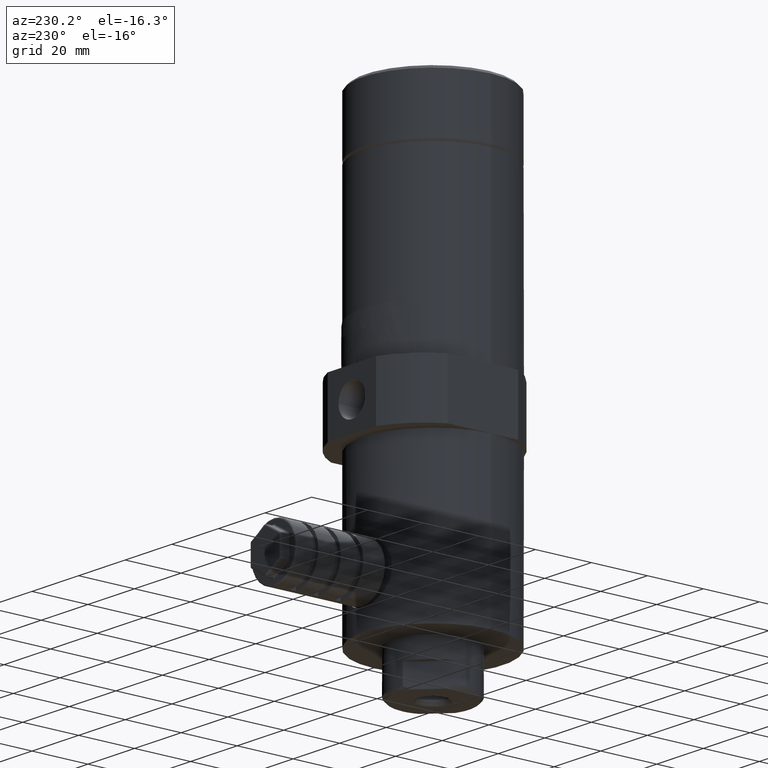
[diagram: clean part render]
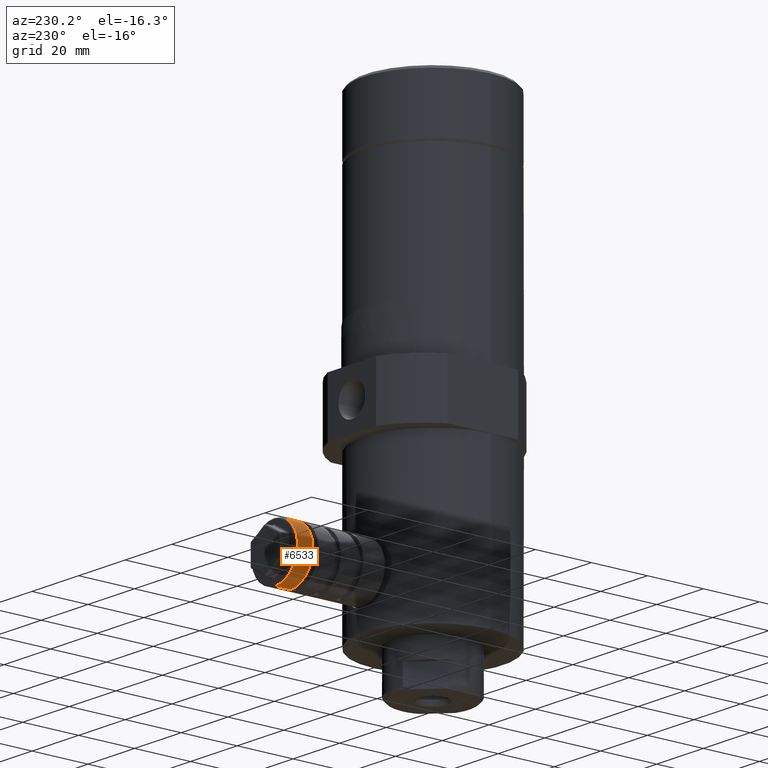
[diagram: same view with one face highlighted and labeled with its STEP entity id]
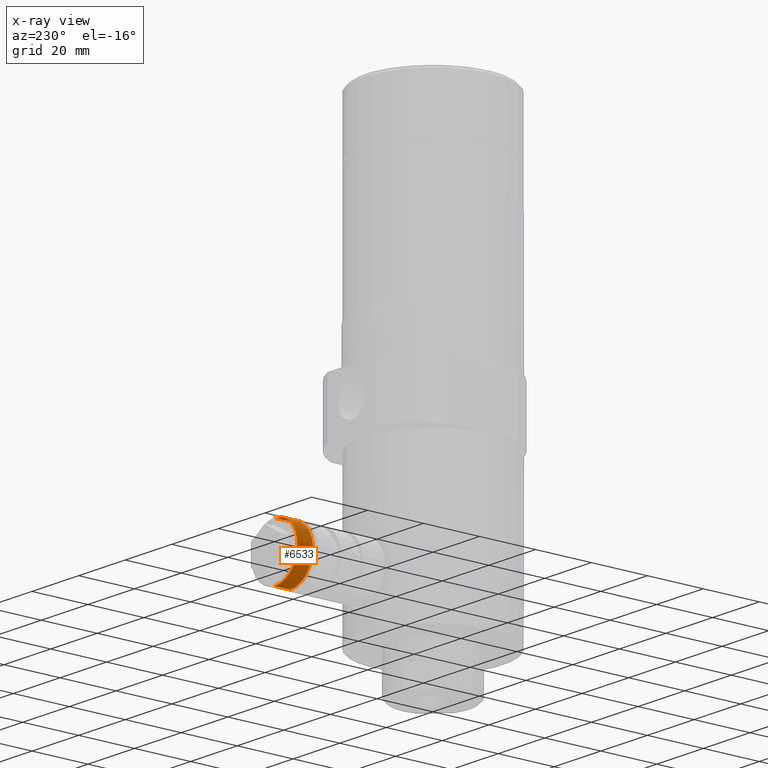
[diagram: x-ray of the same camera — body ghosted, the highlighted face saturated]
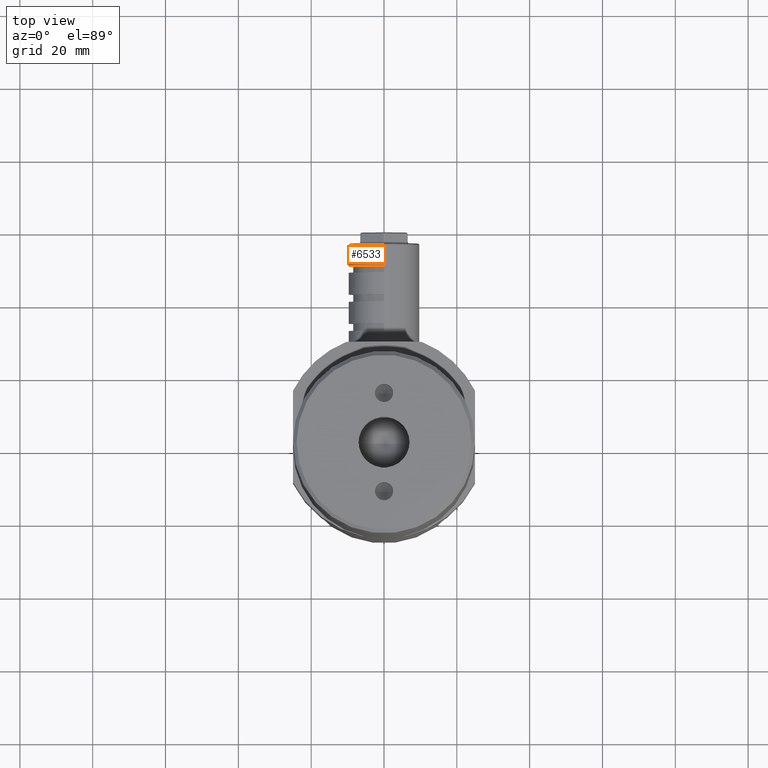
[diagram: same view with one face highlighted and labeled with its STEP entity id]
A machine part, auxiliary view. The second image highlights one B-rep face of the part: STEP entity #6533.
The next image is the same camera in x-ray: the body ghosted, the highlighted face saturated — about 0% of this face is hidden behind the body in this view.
A second angle (top view) of the same face is appended — the face is thin or edge-on in the first view.
In plain terms, the highlighted cylindrical surface (edge-blend (fillet) strip) has radius 9.75 mm, axis along (0, -1, 0).
Its self-contained STEP definition (entity closure, byte-faithful):
#109 = LINE ( 'NONE', #5415, #5097 ) ;
#122 = CARTESIAN_POINT ( 'NONE',  ( -2.991311925369654400E-015, 57.00000000000000000, 22.62468314162909900 ) ) ;
#393 = CYLINDRICAL_SURFACE ( 'NONE', #3867, 9.749999999999998200 ) ;
#395 = DIRECTION ( 'NONE',  ( 7.161140906330799000E-017, -1.000000000000000000, 1.038109137218916000E-017 ) ) ;
#784 = ORIENTED_EDGE ( 'NONE', *, *, #5626, .T. ) ;
#871 = AXIS2_PLACEMENT_3D ( 'NONE', #5164, #3113, #2061 ) ;
#1185 = VERTEX_POINT ( 'NONE', #2068 ) ;
#1381 = EDGE_CURVE ( 'NONE', #4773, #3249, #109, .T. ) ;
#1790 = CARTESIAN_POINT ( 'NONE',  ( -2.662859111868650000E-015, 51.00000000000000000, 12.87468314162910100 ) ) ;
#1949 = EDGE_CURVE ( 'NONE', #1185, #2831, #4367, .T. ) ;
#2061 = DIRECTION ( 'NONE',  ( -1.038109137218914700E-017, 0.0000000000000000000, -1.000000000000000000 ) ) ;
#2068 = CARTESIAN_POINT ( 'NONE',  ( -1.744313739477882000E-015, 56.50000000000000000, 32.37468314162909900 ) ) ;
#2397 = DIRECTION ( 'NONE',  ( 7.161140906330799000E-017, -1.000000000000000000, 1.038109137218916000E-017 ) ) ;
#2831 = VERTEX_POINT ( 'NONE', #4250 ) ;
#2881 = CIRCLE ( 'NONE', #871, 9.750000000000000000 ) ;
#2968 = CARTESIAN_POINT ( 'NONE',  ( -2.561643470989804800E-015, 51.00000000000000000, 22.62468314162909900 ) ) ;
#3056 = CIRCLE ( 'NONE', #6588, 9.750000000000000000 ) ;
#3113 = DIRECTION ( 'NONE',  ( 7.161140906330799000E-017, -1.000000000000000000, 1.038109137218916000E-017 ) ) ;
#3249 = VERTEX_POINT ( 'NONE', #1790 ) ;
#3312 = ORIENTED_EDGE ( 'NONE', *, *, #3545, .T. ) ;
#3545 = EDGE_CURVE ( 'NONE', #3249, #2831, #3056, .T. ) ;
#3628 = ORIENTED_EDGE ( 'NONE', *, *, #1381, .T. ) ;
#3711 = CARTESIAN_POINT ( 'NONE',  ( -3.140775650404240500E-015, 56.50000000000000000, 12.87468314162910100 ) ) ;
#3867 = AXIS2_PLACEMENT_3D ( 'NONE', #122, #6205, #5190 ) ;
#4250 = CARTESIAN_POINT ( 'NONE',  ( -3.654419025087779800E-015, 51.00000000000000000, 32.37468314162910600 ) ) ;
#4367 = LINE ( 'NONE', #5451, #5173 ) ;
#4493 = DIRECTION ( 'NONE',  ( -1.038109137218914700E-017, 0.0000000000000000000, -1.000000000000000000 ) ) ;
#4518 = DIRECTION ( 'NONE',  ( -7.161140906330799000E-017, 1.000000000000000000, -1.038109137218916000E-017 ) ) ;
#4773 = VERTEX_POINT ( 'NONE', #3711 ) ;
#5097 = VECTOR ( 'NONE', #2397, 1000.000000000000000 ) ;
#5164 = CARTESIAN_POINT ( 'NONE',  ( -2.955506220837999500E-015, 56.50000000000000000, 22.62468314162909900 ) ) ;
#5173 = VECTOR ( 'NONE', #395, 1000.000000000000000 ) ;
#5190 = DIRECTION ( 'NONE',  ( 1.038109137218915000E-017, 0.0000000000000000000, 1.000000000000000000 ) ) ;
#5415 = CARTESIAN_POINT ( 'NONE',  ( -4.286558195417168900E-015, 57.00000000000000000, 12.87468314162910100 ) ) ;
#5451 = CARTESIAN_POINT ( 'NONE',  ( -2.890096284490810400E-015, 57.00000000000000000, 32.37468314162909900 ) ) ;
#5607 = EDGE_LOOP ( 'NONE', ( #784, #3628, #3312, #6168 ) ) ;
#5626 = EDGE_CURVE ( 'NONE', #1185, #4773, #2881, .T. ) ;
#6168 = ORIENTED_EDGE ( 'NONE', *, *, #1949, .F. ) ;
#6205 = DIRECTION ( 'NONE',  ( 7.161140906330799000E-017, -1.000000000000000000, 1.038109137218916000E-017 ) ) ;
#6263 = FACE_OUTER_BOUND ( 'NONE', #5607, .T. ) ;
#6533 = ADVANCED_FACE ( 'NONE', ( #6263 ), #393, .T. ) ;
#6588 = AXIS2_PLACEMENT_3D ( 'NONE', #2968, #4518, #4493 ) ;